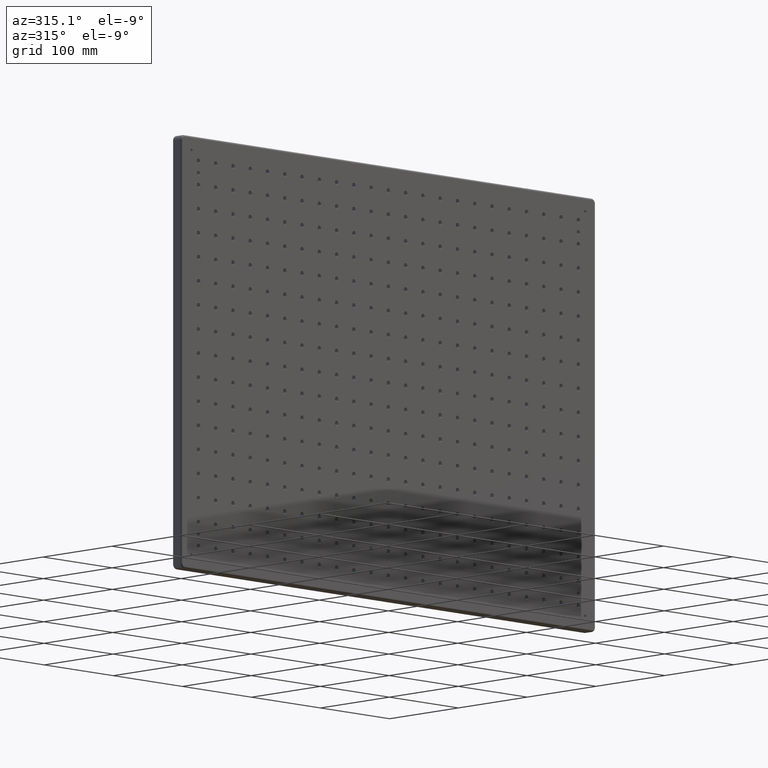
[diagram: clean part render]
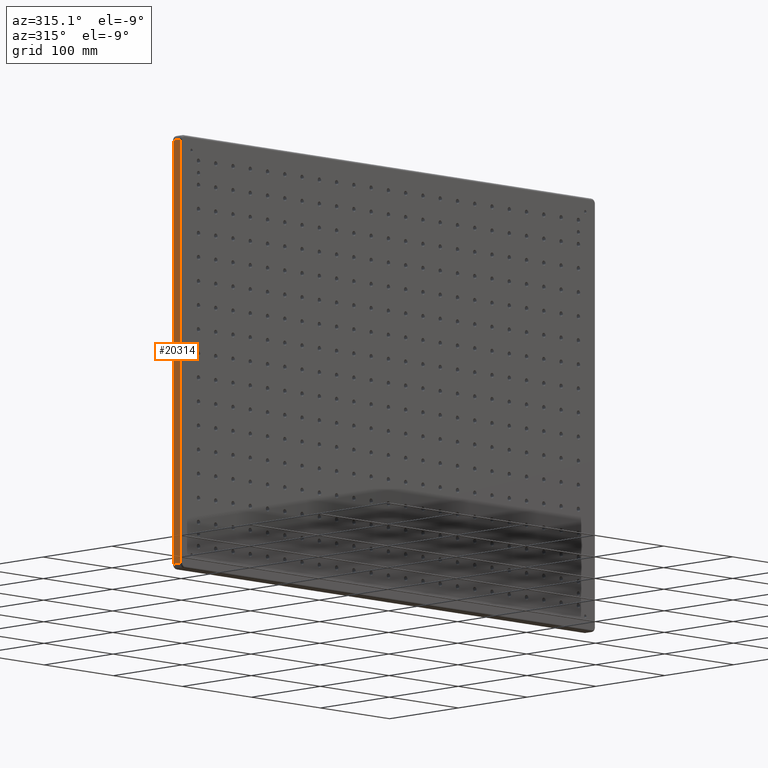
[diagram: same view with one face highlighted and labeled with its STEP entity id]
A machine part, auxiliary view. The second image highlights one B-rep face of the part: STEP entity #20314.
In plain terms, the highlighted planar face has unit normal (1, 0, 0).
Its self-contained STEP definition (entity closure, byte-faithful):
#216 = EDGE_CURVE ( 'NONE', #15705, #6591, #6367, .T. ) ;
#902 = VECTOR ( 'NONE', #15204, 1000.000000000000000 ) ;
#2077 = ORIENTED_EDGE ( 'NONE', *, *, #11155, .T. ) ;
#2296 = VERTEX_POINT ( 'NONE', #29955 ) ;
#4270 = CARTESIAN_POINT ( 'NONE',  ( -299.9999999999997700, 2.000000000000001800, -220.0000000000000300 ) ) ;
#5015 = PLANE ( 'NONE',  #10374 ) ;
#5814 = CARTESIAN_POINT ( 'NONE',  ( -299.9999999999998900, 13.00000000000000000, 220.0000000000000300 ) ) ;
#5868 = CARTESIAN_POINT ( 'NONE',  ( -299.9999999999997700, 11.00000000000000000, -220.0000000000000300 ) ) ;
#6367 = LINE ( 'NONE', #10339, #15197 ) ;
#6591 = VERTEX_POINT ( 'NONE', #4270 ) ;
#8472 = EDGE_CURVE ( 'NONE', #8887, #2296, #18571, .T. ) ;
#8485 = ORIENTED_EDGE ( 'NONE', *, *, #10912, .T. ) ;
#8887 = VERTEX_POINT ( 'NONE', #26053 ) ;
#10339 = CARTESIAN_POINT ( 'NONE',  ( -299.9999999999997700, 13.00000000000000000, -220.0000000000000300 ) ) ;
#10374 = AXIS2_PLACEMENT_3D ( 'NONE', #26446, #12263, #22150 ) ;
#10736 = CARTESIAN_POINT ( 'NONE',  ( -299.9999999999997700, 2.000000000000000000, -220.0000000000000300 ) ) ;
#10769 = VECTOR ( 'NONE', #13509, 1000.000000000000000 ) ;
#10912 = EDGE_CURVE ( 'NONE', #6591, #2296, #29254, .T. ) ;
#11155 = EDGE_CURVE ( 'NONE', #8887, #15705, #29592, .T. ) ;
#12263 = DIRECTION ( 'NONE',  ( 1.000000000000000000, 0.0000000000000000000, 0.0000000000000000000 ) ) ;
#13190 = FACE_OUTER_BOUND ( 'NONE', #20838, .T. ) ;
#13509 = DIRECTION ( 'NONE',  ( 0.0000000000000000000, 0.0000000000000000000, 1.000000000000000000 ) ) ;
#15197 = VECTOR ( 'NONE', #24599, 1000.000000000000000 ) ;
#15204 = DIRECTION ( 'NONE',  ( -0.0000000000000000000, -1.000000000000000000, -0.0000000000000000000 ) ) ;
#15413 = CARTESIAN_POINT ( 'NONE',  ( -299.9999999999997700, 11.00000000000000000, -220.0000000000000300 ) ) ;
#15705 = VERTEX_POINT ( 'NONE', #5868 ) ;
#18571 = LINE ( 'NONE', #5814, #902 ) ;
#20314 = ADVANCED_FACE ( 'NONE', ( #13190 ), #5015, .F. ) ;
#20838 = EDGE_LOOP ( 'NONE', ( #25492, #8485, #27232, #2077 ) ) ;
#21431 = DIRECTION ( 'NONE',  ( 0.0000000000000000000, -0.0000000000000000000, -1.000000000000000000 ) ) ;
#22150 = DIRECTION ( 'NONE',  ( 0.0000000000000000000, 0.0000000000000000000, -1.000000000000000000 ) ) ;
#24599 = DIRECTION ( 'NONE',  ( -0.0000000000000000000, -1.000000000000000000, -0.0000000000000000000 ) ) ;
#24776 = VECTOR ( 'NONE', #21431, 1000.000000000000000 ) ;
#25492 = ORIENTED_EDGE ( 'NONE', *, *, #216, .T. ) ;
#26053 = CARTESIAN_POINT ( 'NONE',  ( -299.9999999999998900, 11.00000000000000000, 220.0000000000000300 ) ) ;
#26446 = CARTESIAN_POINT ( 'NONE',  ( -299.9999999999997700, 13.00000000000000000, -220.0000000000000300 ) ) ;
#27232 = ORIENTED_EDGE ( 'NONE', *, *, #8472, .F. ) ;
#29254 = LINE ( 'NONE', #10736, #10769 ) ;
#29592 = LINE ( 'NONE', #15413, #24776 ) ;
#29955 = CARTESIAN_POINT ( 'NONE',  ( -299.9999999999998900, 2.000000000000003600, 220.0000000000000300 ) ) ;